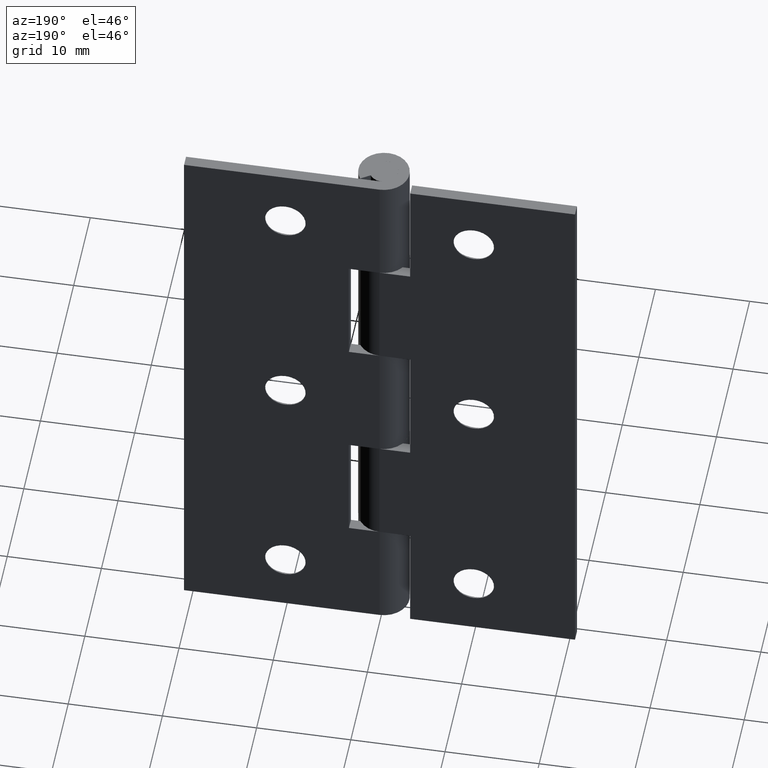
[diagram: clean part render]
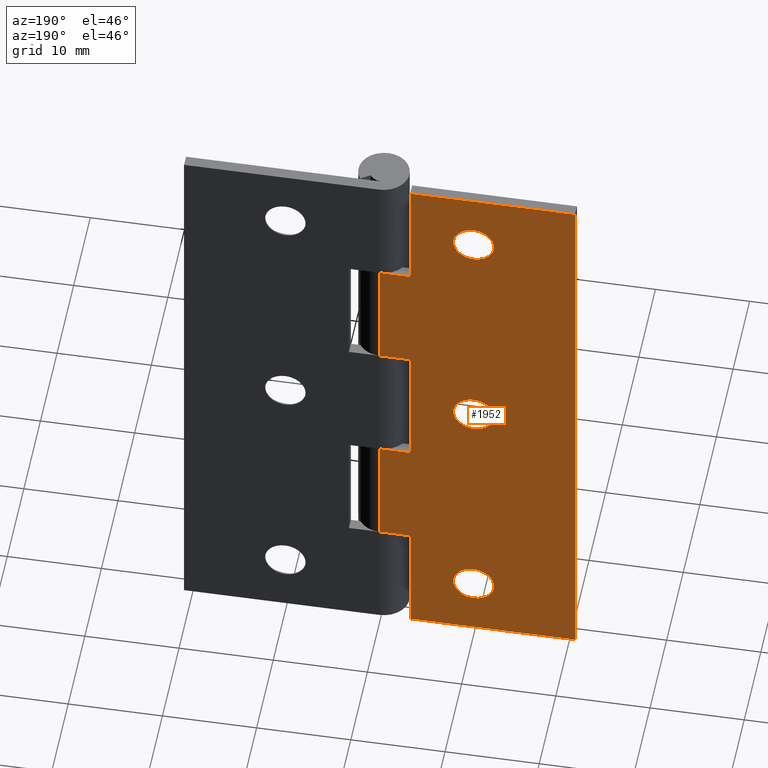
[diagram: same view with one face highlighted and labeled with its STEP entity id]
A machine part, auxiliary view. The second image highlights one B-rep face of the part: STEP entity #1952.
In plain terms, the highlighted face is a freeform B-spline surface patch.
Its self-contained STEP definition (entity closure, byte-faithful):
#330=CARTESIAN_POINT('',(-7.864041259061427,2.700001001358030,57.254690536419503));
#331=VERTEX_POINT('',#330);
#337=CARTESIAN_POINT('',(-9.999999999999890,2.700001001358030,55.350006999999898));
#338=VERTEX_POINT('',#337);
#339=CARTESIAN_POINT('',(-7.864041259061427,2.700001001358030,57.254690536419503));
#340=CARTESIAN_POINT('',(-8.082795604144630,2.700001001358030,55.350006999999906));
#341=CARTESIAN_POINT('',(-9.999999999999890,2.700001001358030,55.350006999999898));
#349=(BOUNDED_CURVE()B_SPLINE_CURVE(2,(#339,#340,#341),.UNSPECIFIED.,.F.,.U.)B_SPLINE_CURVE_WITH_KNOTS((3,3),(0.269767761703155,0.500000000000000),.UNSPECIFIED.)CURVE()GEOMETRIC_REPRESENTATION_ITEM()RATIONAL_B_SPLINE_CURVE((0.957343724967244,0.730266154602445,1.0))REPRESENTATION_ITEM(''));
#350=EDGE_CURVE('',#331,#338,#349,.T.);
#352=CARTESIAN_POINT('',(-12.145989795774639,2.700001001358030,57.368752641117382));
#353=VERTEX_POINT('',#352);
#354=CARTESIAN_POINT('',(-9.999999999999890,2.700001001358030,55.350006999999898));
#355=CARTESIAN_POINT('',(-12.022518043552253,2.700001001358029,55.350006999999891));
#356=CARTESIAN_POINT('',(-12.145989795774645,2.700001001358030,57.368752641117382));
#364=(BOUNDED_CURVE()B_SPLINE_CURVE(2,(#354,#355,#356),.UNSPECIFIED.,.F.,.U.)B_SPLINE_CURVE_WITH_KNOTS((3,3),(0.500000000000000,0.739332962216858),.UNSPECIFIED.)CURVE()GEOMETRIC_REPRESENTATION_ITEM()RATIONAL_B_SPLINE_CURVE((1.0,0.719603993312584,0.976072041619386))REPRESENTATION_ITEM(''));
#365=EDGE_CURVE('',#338,#353,#364,.T.);
#460=CARTESIAN_POINT('',(-9.999999999999890,2.700001001358030,59.650006999999903));
#461=VERTEX_POINT('',#460);
#462=CARTESIAN_POINT('',(-12.145989795774639,2.700001001358030,57.368752641117382));
#463=CARTESIAN_POINT('',(-12.149999999999894,2.700001001358031,57.434318558751350));
#464=CARTESIAN_POINT('',(-12.149999999999890,2.700001001358030,57.500006999999897));
#465=CARTESIAN_POINT('',(-12.149999999999888,2.700001001358031,59.650006999999896));
#466=CARTESIAN_POINT('',(-9.999999999999890,2.700001001358030,59.650006999999903));
#474=(BOUNDED_CURVE()B_SPLINE_CURVE(2,(#462,#463,#464,#465,#466),.UNSPECIFIED.,.F.,.U.)B_SPLINE_CURVE_WITH_KNOTS((3,2,3),(0.739332962216858,0.750000000000000,1.0),.UNSPECIFIED.)CURVE()GEOMETRIC_REPRESENTATION_ITEM()RATIONAL_B_SPLINE_CURVE((0.976072041619386,0.987502787873963,1.0,0.707106781186547,1.0))REPRESENTATION_ITEM(''));
#475=EDGE_CURVE('',#353,#461,#474,.T.);
#477=CARTESIAN_POINT('',(-9.999999999999890,2.700001001358030,59.650006999999903));
#478=CARTESIAN_POINT('',(-7.849999999999889,2.700001001358031,59.650006999999896));
#479=CARTESIAN_POINT('',(-7.849999999999889,2.700001001358030,57.500006999999897));
#480=CARTESIAN_POINT('',(-7.849999999999889,2.700001001358030,57.376946907563614));
#481=CARTESIAN_POINT('',(-7.864041259061427,2.700001001358030,57.254690536419503));
#489=(BOUNDED_CURVE()B_SPLINE_CURVE(2,(#477,#478,#479,#480,#481),.UNSPECIFIED.,.F.,.U.)B_SPLINE_CURVE_WITH_KNOTS((3,2,3),(0.0,0.250000000000000,0.269767761703155),.UNSPECIFIED.)CURVE()GEOMETRIC_REPRESENTATION_ITEM()RATIONAL_B_SPLINE_CURVE((1.0,0.707106781186547,1.0,0.976840626584103,0.957343724967244))REPRESENTATION_ITEM(''));
#490=EDGE_CURVE('',#461,#331,#489,.T.);
#658=CARTESIAN_POINT('',(-7.864041259061427,2.700001001358030,31.754690536419609));
#659=VERTEX_POINT('',#658);
#665=CARTESIAN_POINT('',(-9.999999999999890,2.700001001358030,29.850007000000002));
#666=VERTEX_POINT('',#665);
#667=CARTESIAN_POINT('',(-7.864041259061427,2.700001001358031,31.754690536419609));
#668=CARTESIAN_POINT('',(-8.082795604144632,2.700001001358030,29.850006999999998));
#669=CARTESIAN_POINT('',(-9.999999999999890,2.700001001358030,29.850007000000002));
#677=(BOUNDED_CURVE()B_SPLINE_CURVE(2,(#667,#668,#669),.UNSPECIFIED.,.F.,.U.)B_SPLINE_CURVE_WITH_KNOTS((3,3),(0.269767761703155,0.500000000000000),.UNSPECIFIED.)CURVE()GEOMETRIC_REPRESENTATION_ITEM()RATIONAL_B_SPLINE_CURVE((0.957343724967243,0.730266154602445,1.0))REPRESENTATION_ITEM(''));
#678=EDGE_CURVE('',#659,#666,#677,.T.);
#680=CARTESIAN_POINT('',(-12.145989795774639,2.700001001358030,31.868752641117471));
#681=VERTEX_POINT('',#680);
#682=CARTESIAN_POINT('',(-9.999999999999890,2.700001001358030,29.850007000000002));
#683=CARTESIAN_POINT('',(-12.022518043552253,2.700001001358029,29.850006999999998));
#684=CARTESIAN_POINT('',(-12.145989795774645,2.700001001358030,31.868752641117474));
#692=(BOUNDED_CURVE()B_SPLINE_CURVE(2,(#682,#683,#684),.UNSPECIFIED.,.F.,.U.)B_SPLINE_CURVE_WITH_KNOTS((3,3),(0.500000000000000,0.739332962216858),.UNSPECIFIED.)CURVE()GEOMETRIC_REPRESENTATION_ITEM()RATIONAL_B_SPLINE_CURVE((1.0,0.719603993312584,0.976072041619386))REPRESENTATION_ITEM(''));
#693=EDGE_CURVE('',#666,#681,#692,.T.);
#788=CARTESIAN_POINT('',(-9.999999999999890,2.700001001358030,34.150007000000002));
#789=VERTEX_POINT('',#788);
#790=CARTESIAN_POINT('',(-12.145989795774643,2.700001001358029,31.868752641117471));
#791=CARTESIAN_POINT('',(-12.149999999999890,2.700001001358030,31.934318558751443));
#792=CARTESIAN_POINT('',(-12.149999999999890,2.700001001358030,32.000006999999997));
#793=CARTESIAN_POINT('',(-12.149999999999888,2.700001001358031,34.150006999999995));
#794=CARTESIAN_POINT('',(-9.999999999999890,2.700001001358030,34.150007000000002));
#802=(BOUNDED_CURVE()B_SPLINE_CURVE(2,(#790,#791,#792,#793,#794),.UNSPECIFIED.,.F.,.U.)B_SPLINE_CURVE_WITH_KNOTS((3,2,3),(0.739332962216858,0.750000000000000,1.0),.UNSPECIFIED.)CURVE()GEOMETRIC_REPRESENTATION_ITEM()RATIONAL_B_SPLINE_CURVE((0.976072041619385,0.987502787873963,1.0,0.707106781186547,1.0))REPRESENTATION_ITEM(''));
#803=EDGE_CURVE('',#681,#789,#802,.T.);
#805=CARTESIAN_POINT('',(-9.999999999999890,2.700001001358030,34.150007000000002));
#806=CARTESIAN_POINT('',(-7.849999999999889,2.700001001358031,34.150006999999995));
#807=CARTESIAN_POINT('',(-7.849999999999889,2.700001001358030,32.000006999999997));
#808=CARTESIAN_POINT('',(-7.849999999999890,2.700001001358029,31.876946907563710));
#809=CARTESIAN_POINT('',(-7.864041259061427,2.700001001358031,31.754690536419609));
#817=(BOUNDED_CURVE()B_SPLINE_CURVE(2,(#805,#806,#807,#808,#809),.UNSPECIFIED.,.F.,.U.)B_SPLINE_CURVE_WITH_KNOTS((3,2,3),(0.0,0.250000000000000,0.269767761703155),.UNSPECIFIED.)CURVE()GEOMETRIC_REPRESENTATION_ITEM()RATIONAL_B_SPLINE_CURVE((1.0,0.707106781186547,1.0,0.976840626584102,0.957343724967243))REPRESENTATION_ITEM(''));
#818=EDGE_CURVE('',#789,#659,#817,.T.);
#986=CARTESIAN_POINT('',(-7.864041259061427,2.700001001358030,6.254683536419400));
#987=VERTEX_POINT('',#986);
#993=CARTESIAN_POINT('',(-9.999999999999890,2.700001001358030,4.349999999999790));
#994=VERTEX_POINT('',#993);
#995=CARTESIAN_POINT('',(-7.864041259061427,2.700001001358030,6.254683536419400));
#996=CARTESIAN_POINT('',(-8.082795604144630,2.700001001358031,4.349999999999791));
#997=CARTESIAN_POINT('',(-9.999999999999890,2.700001001358030,4.349999999999790));
#1005=(BOUNDED_CURVE()B_SPLINE_CURVE(2,(#995,#996,#997),.UNSPECIFIED.,.F.,.U.)B_SPLINE_CURVE_WITH_KNOTS((3,3),(0.269767761703155,0.500000000000000),.UNSPECIFIED.)CURVE()GEOMETRIC_REPRESENTATION_ITEM()RATIONAL_B_SPLINE_CURVE((0.957343724967244,0.730266154602445,1.0))REPRESENTATION_ITEM(''));
#1006=EDGE_CURVE('',#987,#994,#1005,.T.);
#1008=CARTESIAN_POINT('',(-12.145989795774639,2.700001001358030,6.368745641117267));
#1009=VERTEX_POINT('',#1008);
#1010=CARTESIAN_POINT('',(-9.999999999999890,2.700001001358030,4.349999999999790));
#1011=CARTESIAN_POINT('',(-12.022518043552253,2.700001001358029,4.349999999999790));
#1012=CARTESIAN_POINT('',(-12.145989795774645,2.700001001358030,6.368745641117267));
#1020=(BOUNDED_CURVE()B_SPLINE_CURVE(2,(#1010,#1011,#1012),.UNSPECIFIED.,.F.,.U.)B_SPLINE_CURVE_WITH_KNOTS((3,3),(0.500000000000000,0.739332962216858),.UNSPECIFIED.)CURVE()GEOMETRIC_REPRESENTATION_ITEM()RATIONAL_B_SPLINE_CURVE((1.0,0.719603993312584,0.976072041619386))REPRESENTATION_ITEM(''));
#1021=EDGE_CURVE('',#994,#1009,#1020,.T.);
#1116=CARTESIAN_POINT('',(-9.999999999999890,2.700001001358030,8.649999999999789));
#1117=VERTEX_POINT('',#1116);
#1118=CARTESIAN_POINT('',(-12.145989795774643,2.700001001358029,6.368745641117267));
#1119=CARTESIAN_POINT('',(-12.149999999999890,2.700001001358030,6.434311558751233));
#1120=CARTESIAN_POINT('',(-12.149999999999890,2.700001001358030,6.499999999999790));
#1121=CARTESIAN_POINT('',(-12.149999999999888,2.700001001358031,8.649999999999789));
#1122=CARTESIAN_POINT('',(-9.999999999999890,2.700001001358030,8.649999999999789));
#1130=(BOUNDED_CURVE()B_SPLINE_CURVE(2,(#1118,#1119,#1120,#1121,#1122),.UNSPECIFIED.,.F.,.U.)B_SPLINE_CURVE_WITH_KNOTS((3,2,3),(0.739332962216858,0.750000000000000,1.0),.UNSPECIFIED.)CURVE()GEOMETRIC_REPRESENTATION_ITEM()RATIONAL_B_SPLINE_CURVE((0.976072041619385,0.987502787873963,1.0,0.707106781186547,1.0))REPRESENTATION_ITEM(''));
#1131=EDGE_CURVE('',#1009,#1117,#1130,.T.);
#1133=CARTESIAN_POINT('',(-9.999999999999890,2.700001001358030,8.649999999999789));
#1134=CARTESIAN_POINT('',(-7.849999999999889,2.700001001358031,8.649999999999789));
#1135=CARTESIAN_POINT('',(-7.849999999999889,2.700001001358030,6.499999999999790));
#1136=CARTESIAN_POINT('',(-7.849999999999888,2.700001001358030,6.376939907563511));
#1137=CARTESIAN_POINT('',(-7.864041259061427,2.700001001358030,6.254683536419400));
#1145=(BOUNDED_CURVE()B_SPLINE_CURVE(2,(#1133,#1134,#1135,#1136,#1137),.UNSPECIFIED.,.F.,.U.)B_SPLINE_CURVE_WITH_KNOTS((3,2,3),(0.0,0.250000000000000,0.269767761703155),.UNSPECIFIED.)CURVE()GEOMETRIC_REPRESENTATION_ITEM()RATIONAL_B_SPLINE_CURVE((1.0,0.707106781186547,1.0,0.976840626584103,0.957343724967244))REPRESENTATION_ITEM(''));
#1146=EDGE_CURVE('',#1117,#987,#1145,.T.);
#1286=CARTESIAN_POINT('',(1.653236E-016,2.700001000000000,51.500006999999897));
#1287=VERTEX_POINT('',#1286);
#1307=CARTESIAN_POINT('',(-3.249999999999915,2.700001000000000,51.500006999999897));
#1308=VERTEX_POINT('',#1307);
#1309=CARTESIAN_POINT('',(-3.249999999999915,2.700001000000000,51.500006999999897));
#1310=CARTESIAN_POINT('',(1.653236E-016,2.700001000000000,51.500006999999897));
#1311=QUASI_UNIFORM_CURVE('',1,(#1309,#1310),.UNSPECIFIED.,.F.,.U.);
#1312=EDGE_CURVE('',#1308,#1287,#1311,.T.);
#1363=CARTESIAN_POINT('',(-3.249999999999915,2.700001000000000,64.000006999999897));
#1364=VERTEX_POINT('',#1363);
#1365=CARTESIAN_POINT('',(-3.249999999999915,2.700001000000000,64.000006999999897));
#1366=CARTESIAN_POINT('',(-3.249999999999915,2.700001000000000,51.500006999999897));
#1367=QUASI_UNIFORM_CURVE('',1,(#1365,#1366),.UNSPECIFIED.,.F.,.U.);
#1368=EDGE_CURVE('',#1364,#1308,#1367,.T.);
#1392=CARTESIAN_POINT('',(1.653219E-016,2.700000000000000,25.0));
#1393=VERTEX_POINT('',#1392);
#1413=CARTESIAN_POINT('',(-3.249999999999915,2.700001000000000,25.0));
#1414=VERTEX_POINT('',#1413);
#1415=CARTESIAN_POINT('',(-3.249999999999915,2.700001000000000,25.0));
#1416=CARTESIAN_POINT('',(1.653219E-016,2.700000000000000,25.0));
#1417=QUASI_UNIFORM_CURVE('',1,(#1415,#1416),.UNSPECIFIED.,.F.,.U.);
#1418=EDGE_CURVE('',#1414,#1393,#1417,.T.);
#1469=CARTESIAN_POINT('',(-3.249999999999915,2.700001000000000,39.000006999999897));
#1470=VERTEX_POINT('',#1469);
#1471=CARTESIAN_POINT('',(-3.249999999999915,2.700001000000000,39.000006999999897));
#1472=CARTESIAN_POINT('',(-3.249999999999915,2.700001000000000,25.0));
#1473=QUASI_UNIFORM_CURVE('',1,(#1471,#1472),.UNSPECIFIED.,.F.,.U.);
#1474=EDGE_CURVE('',#1470,#1414,#1473,.T.);
#1497=CARTESIAN_POINT('',(1.653236E-016,2.700001000000000,39.000006999999897));
#1498=VERTEX_POINT('',#1497);
#1499=CARTESIAN_POINT('',(1.653236E-016,2.700001000000000,39.000006999999897));
#1500=CARTESIAN_POINT('',(-3.249999999999915,2.700001000000000,39.000006999999897));
#1501=QUASI_UNIFORM_CURVE('',1,(#1499,#1500),.UNSPECIFIED.,.F.,.U.);
#1502=EDGE_CURVE('',#1498,#1470,#1501,.T.);
#1575=CARTESIAN_POINT('',(-3.249999999999915,2.700001000000000,0.0));
#1576=VERTEX_POINT('',#1575);
#1582=CARTESIAN_POINT('',(-3.249999999999915,2.700001000000000,12.499999999999799));
#1583=VERTEX_POINT('',#1582);
#1584=CARTESIAN_POINT('',(-3.249999999999915,2.700001000000000,0.0));
#1585=CARTESIAN_POINT('',(-3.249999999999915,2.700001000000000,12.499999999999799));
#1586=QUASI_UNIFORM_CURVE('',1,(#1584,#1585),.UNSPECIFIED.,.F.,.U.);
#1587=EDGE_CURVE('',#1576,#1583,#1586,.T.);
#1604=CARTESIAN_POINT('',(0.0,2.700001000000000,12.499999999999799));
#1605=VERTEX_POINT('',#1604);
#1659=CARTESIAN_POINT('',(-3.249999999999915,2.700001000000000,12.499999999999799));
#1660=CARTESIAN_POINT('',(0.0,2.700001000000000,12.499999999999799));
#1661=QUASI_UNIFORM_CURVE('',1,(#1659,#1660),.UNSPECIFIED.,.F.,.U.);
#1662=EDGE_CURVE('',#1583,#1605,#1661,.T.);
#1680=CARTESIAN_POINT('',(-20.750000000000000,2.700001000000000,64.000006999999897));
#1681=VERTEX_POINT('',#1680);
#1682=CARTESIAN_POINT('',(-3.249999999999915,2.700001000000000,64.000006999999897));
#1683=CARTESIAN_POINT('',(-20.750000000000000,2.700001000000000,64.000006999999897));
#1684=QUASI_UNIFORM_CURVE('',1,(#1682,#1683),.UNSPECIFIED.,.F.,.U.);
#1685=EDGE_CURVE('',#1364,#1681,#1684,.T.);
#1700=CARTESIAN_POINT('',(-20.750000000000000,2.700001000000000,0.0));
#1701=VERTEX_POINT('',#1700);
#1715=CARTESIAN_POINT('',(-20.750000000000000,2.700001000000000,64.000006999999897));
#1716=CARTESIAN_POINT('',(-20.750000000000000,2.700001000000000,0.0));
#1717=QUASI_UNIFORM_CURVE('',1,(#1715,#1716),.UNSPECIFIED.,.F.,.U.);
#1718=EDGE_CURVE('',#1681,#1701,#1717,.T.);
#1728=CARTESIAN_POINT('',(-3.249999999999915,2.700001000000000,0.0));
#1729=CARTESIAN_POINT('',(-20.750000000000000,2.700001000000000,0.0));
#1730=QUASI_UNIFORM_CURVE('',1,(#1728,#1729),.UNSPECIFIED.,.F.,.U.);
#1731=EDGE_CURVE('',#1576,#1701,#1730,.T.);
#1772=CARTESIAN_POINT('',(1.653219E-016,2.700000000000000,25.0));
#1773=CARTESIAN_POINT('',(0.0,2.700001000000000,12.499999999999799));
#1774=QUASI_UNIFORM_CURVE('',1,(#1772,#1773),.UNSPECIFIED.,.F.,.U.);
#1775=EDGE_CURVE('',#1393,#1605,#1774,.T.);
#1858=CARTESIAN_POINT('',(1.653236E-016,2.700001000000000,51.500006999999897));
#1859=CARTESIAN_POINT('',(1.653236E-016,2.700001000000000,39.000006999999897));
#1860=QUASI_UNIFORM_CURVE('',1,(#1858,#1859),.UNSPECIFIED.,.F.,.U.);
#1861=EDGE_CURVE('',#1287,#1498,#1860,.T.);
#1915=CARTESIAN_POINT('',(-21.786462459782470,2.700001000000000,67.196807826391733));
#1916=CARTESIAN_POINT('',(-21.786462459782470,2.700001000000000,-3.196801970801143));
#1917=CARTESIAN_POINT('',(1.036463016340842,2.700001000000000,67.196807826391733));
#1918=CARTESIAN_POINT('',(1.036463016340842,2.700001000000000,-3.196801970801144));
#1919=B_SPLINE_SURFACE_WITH_KNOTS('',1,1,((#1915,#1917),(#1916,#1918)),.UNSPECIFIED.,.F.,.F.,.U.,(2,2),(2,2),(0.0,70.393609797192880),(0.0,22.822925476123309),.UNSPECIFIED.);
#1920=ORIENTED_EDGE('',*,*,#1685,.F.);
#1921=ORIENTED_EDGE('',*,*,#1368,.T.);
#1922=ORIENTED_EDGE('',*,*,#1312,.T.);
#1923=ORIENTED_EDGE('',*,*,#1861,.T.);
#1924=ORIENTED_EDGE('',*,*,#1502,.T.);
#1925=ORIENTED_EDGE('',*,*,#1474,.T.);
#1926=ORIENTED_EDGE('',*,*,#1418,.T.);
#1927=ORIENTED_EDGE('',*,*,#1775,.T.);
#1928=ORIENTED_EDGE('',*,*,#1662,.F.);
#1929=ORIENTED_EDGE('',*,*,#1587,.F.);
#1930=ORIENTED_EDGE('',*,*,#1731,.T.);
#1931=ORIENTED_EDGE('',*,*,#1718,.F.);
#1932=EDGE_LOOP('',(#1920,#1921,#1922,#1923,#1924,#1925,#1926,#1927,#1928,#1929,#1930,#1931));
#1933=FACE_OUTER_BOUND('',#1932,.T.);
#1934=ORIENTED_EDGE('',*,*,#1021,.F.);
#1935=ORIENTED_EDGE('',*,*,#1006,.F.);
#1936=ORIENTED_EDGE('',*,*,#1146,.F.);
#1937=ORIENTED_EDGE('',*,*,#1131,.F.);
#1938=EDGE_LOOP('',(#1934,#1935,#1936,#1937));
#1939=FACE_BOUND('',#1938,.T.);
#1940=ORIENTED_EDGE('',*,*,#693,.F.);
#1941=ORIENTED_EDGE('',*,*,#678,.F.);
#1942=ORIENTED_EDGE('',*,*,#818,.F.);
#1943=ORIENTED_EDGE('',*,*,#803,.F.);
#1944=EDGE_LOOP('',(#1940,#1941,#1942,#1943));
#1945=FACE_BOUND('',#1944,.T.);
#1946=ORIENTED_EDGE('',*,*,#365,.F.);
#1947=ORIENTED_EDGE('',*,*,#350,.F.);
#1948=ORIENTED_EDGE('',*,*,#490,.F.);
#1949=ORIENTED_EDGE('',*,*,#475,.F.);
#1950=EDGE_LOOP('',(#1946,#1947,#1948,#1949));
#1951=FACE_BOUND('',#1950,.T.);
#1952=ADVANCED_FACE('',(#1933,#1939,#1945,#1951),#1919,.F.);